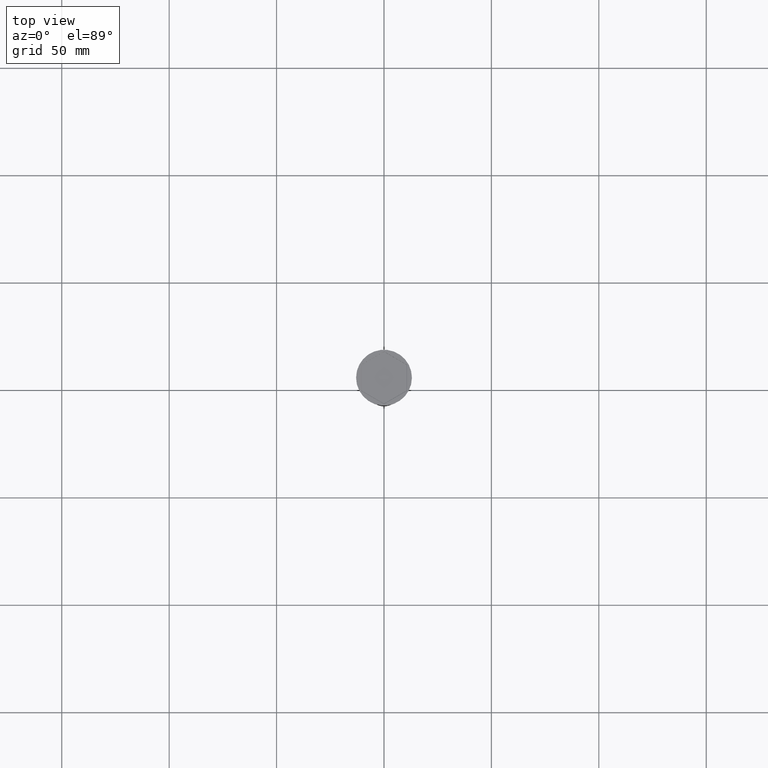
[diagram: clean part render]
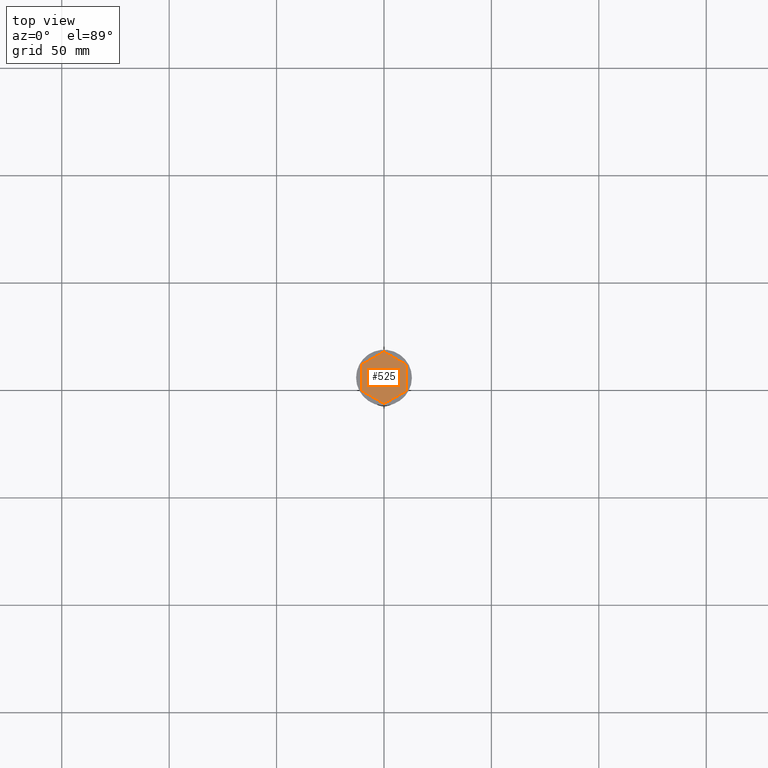
[diagram: same view with one face highlighted and labeled with its STEP entity id]
A machine part, top view. The second image highlights one B-rep face of the part: STEP entity #525.
In plain terms, the highlighted planar face has unit normal (-0, 0, 1).
Its self-contained STEP definition (entity closure, byte-faithful):
#38 = VECTOR ( 'NONE', #249, 1000.000000000000000 ) ;
#45 = CARTESIAN_POINT ( 'NONE',  ( 10.49999999999999822, -6.062177826491069510, -2.000000000000000000 ) ) ;
#80 = VERTEX_POINT ( 'NONE', #304 ) ;
#106 = CARTESIAN_POINT ( 'NONE',  ( -5.249999999999998224, -9.093266739736606041, -2.000000000000000000 ) ) ;
#120 = DIRECTION ( 'NONE',  ( -0.8660254037844387076, 0.4999999999999997224, 0.000000000000000000 ) ) ;
#133 = EDGE_LOOP ( 'NONE', ( #1409, #486, #1323, #1154, #869, #1327 ) ) ;
#245 = CARTESIAN_POINT ( 'NONE',  ( -10.49999999999999822, 0.000000000000000000, -2.000000000000000000 ) ) ;
#249 = DIRECTION ( 'NONE',  ( 0.000000000000000000, 1.000000000000000000, -0.000000000000000000 ) ) ;
#304 = CARTESIAN_POINT ( 'NONE',  ( 10.49999999999999822, 6.062177826491071286, -2.000000000000000000 ) ) ;
#473 = VECTOR ( 'NONE', #843, 999.9999999999998863 ) ;
#479 = CARTESIAN_POINT ( 'NONE',  ( 10.49999999999999822, 0.000000000000000000, -2.000000000000000000 ) ) ;
#486 = ORIENTED_EDGE ( 'NONE', *, *, #692, .T. ) ;
#499 = CARTESIAN_POINT ( 'NONE',  ( -5.249999999999997335, 9.093266739736602489, -2.000000000000000000 ) ) ;
#525 = ADVANCED_FACE ( 'NONE', ( #1023 ), #550, .T. ) ;
#550 = PLANE ( 'NONE',  #652 ) ;
#647 = VERTEX_POINT ( 'NONE', #1350 ) ;
#652 = AXIS2_PLACEMENT_3D ( 'NONE', #1165, #1031, #1182 ) ;
#660 = EDGE_CURVE ( 'NONE', #703, #821, #836, .T. ) ;
#692 = EDGE_CURVE ( 'NONE', #767, #703, #708, .T. ) ;
#703 = VERTEX_POINT ( 'NONE', #1324 ) ;
#707 = VECTOR ( 'NONE', #120, 1000.000000000000114 ) ;
#708 = LINE ( 'NONE', #499, #473 ) ;
#722 = EDGE_CURVE ( 'NONE', #821, #647, #1604, .T. ) ;
#750 = CARTESIAN_POINT ( 'NONE',  ( -10.49999999999999822, -6.062177826491072175, -2.000000000000000000 ) ) ;
#767 = VERTEX_POINT ( 'NONE', #1447 ) ;
#821 = VERTEX_POINT ( 'NONE', #750 ) ;
#836 = LINE ( 'NONE', #245, #904 ) ;
#843 = DIRECTION ( 'NONE',  ( -0.8660254037844387076, -0.5000000000000001110, 0.000000000000000000 ) ) ;
#847 = VERTEX_POINT ( 'NONE', #45 ) ;
#869 = ORIENTED_EDGE ( 'NONE', *, *, #1249, .T. ) ;
#904 = VECTOR ( 'NONE', #1462, 1000.000000000000000 ) ;
#982 = DIRECTION ( 'NONE',  ( 0.8660254037844387076, -0.4999999999999998890, 0.000000000000000000 ) ) ;
#1009 = VECTOR ( 'NONE', #1265, 1000.000000000000000 ) ;
#1023 = FACE_OUTER_BOUND ( 'NONE', #133, .T. ) ;
#1031 = DIRECTION ( 'NONE',  ( -0.000000000000000000, 0.000000000000000000, 1.000000000000000000 ) ) ;
#1116 = CARTESIAN_POINT ( 'NONE',  ( 5.249999999999996447, 9.093266739736606041, -2.000000000000000000 ) ) ;
#1132 = CARTESIAN_POINT ( 'NONE',  ( 5.250000000000000000, -9.093266739736604265, -2.000000000000000000 ) ) ;
#1154 = ORIENTED_EDGE ( 'NONE', *, *, #722, .T. ) ;
#1165 = CARTESIAN_POINT ( 'NONE',  ( 0.000000000000000000, 0.000000000000000000, -2.000000000000000000 ) ) ;
#1182 = DIRECTION ( 'NONE',  ( 1.000000000000000000, 0.000000000000000000, 0.000000000000000000 ) ) ;
#1249 = EDGE_CURVE ( 'NONE', #647, #847, #1517, .T. ) ;
#1265 = DIRECTION ( 'NONE',  ( 0.8660254037844385966, 0.5000000000000001110, 0.000000000000000000 ) ) ;
#1323 = ORIENTED_EDGE ( 'NONE', *, *, #660, .T. ) ;
#1324 = CARTESIAN_POINT ( 'NONE',  ( -10.49999999999999822, 6.062177826491066845, -2.000000000000000000 ) ) ;
#1327 = ORIENTED_EDGE ( 'NONE', *, *, #1597, .T. ) ;
#1330 = LINE ( 'NONE', #479, #38 ) ;
#1350 = CARTESIAN_POINT ( 'NONE',  ( 0.000000000000000000, -12.12435565298214080, -2.000000000000000000 ) ) ;
#1372 = VECTOR ( 'NONE', #982, 1000.000000000000114 ) ;
#1409 = ORIENTED_EDGE ( 'NONE', *, *, #1548, .T. ) ;
#1447 = CARTESIAN_POINT ( 'NONE',  ( 0.000000000000000000, 12.12435565298213724, -2.000000000000000000 ) ) ;
#1462 = DIRECTION ( 'NONE',  ( 0.000000000000000000, -1.000000000000000000, 0.000000000000000000 ) ) ;
#1491 = LINE ( 'NONE', #1116, #707 ) ;
#1517 = LINE ( 'NONE', #1132, #1009 ) ;
#1548 = EDGE_CURVE ( 'NONE', #80, #767, #1491, .T. ) ;
#1597 = EDGE_CURVE ( 'NONE', #847, #80, #1330, .T. ) ;
#1604 = LINE ( 'NONE', #106, #1372 ) ;